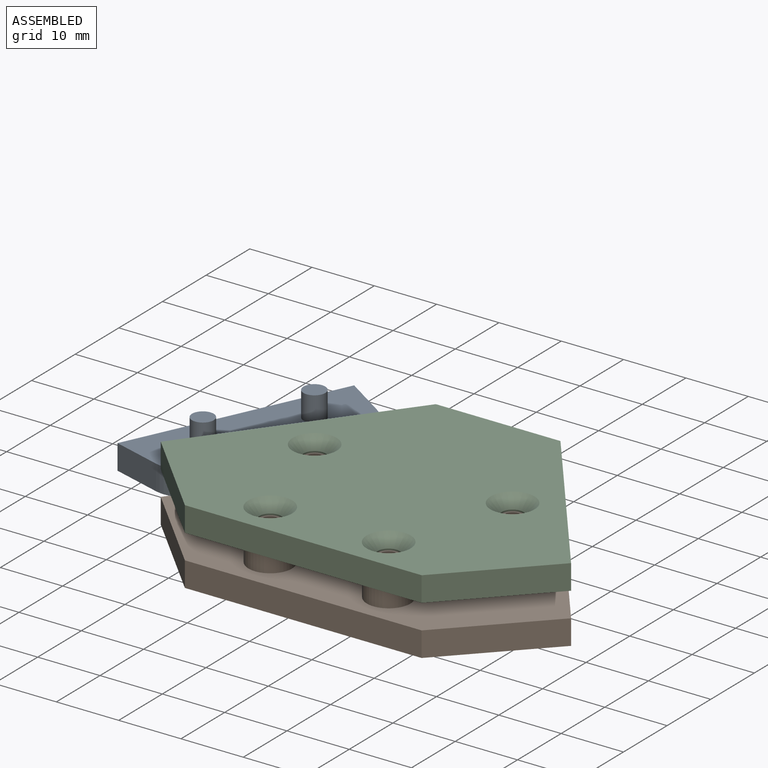
[diagram: assembled view]
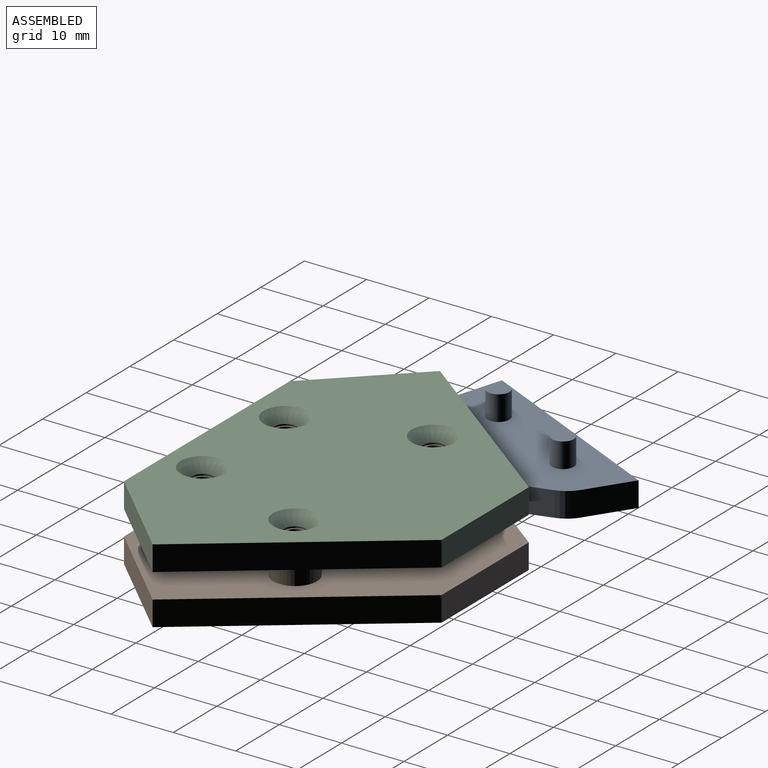
[diagram: assembled view, second angle]
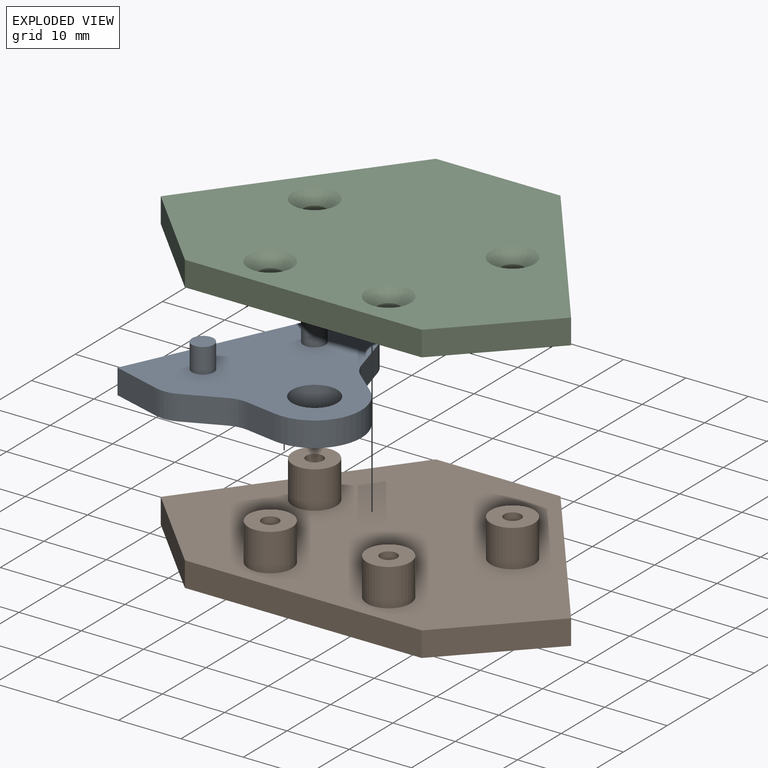
[diagram: exploded view]
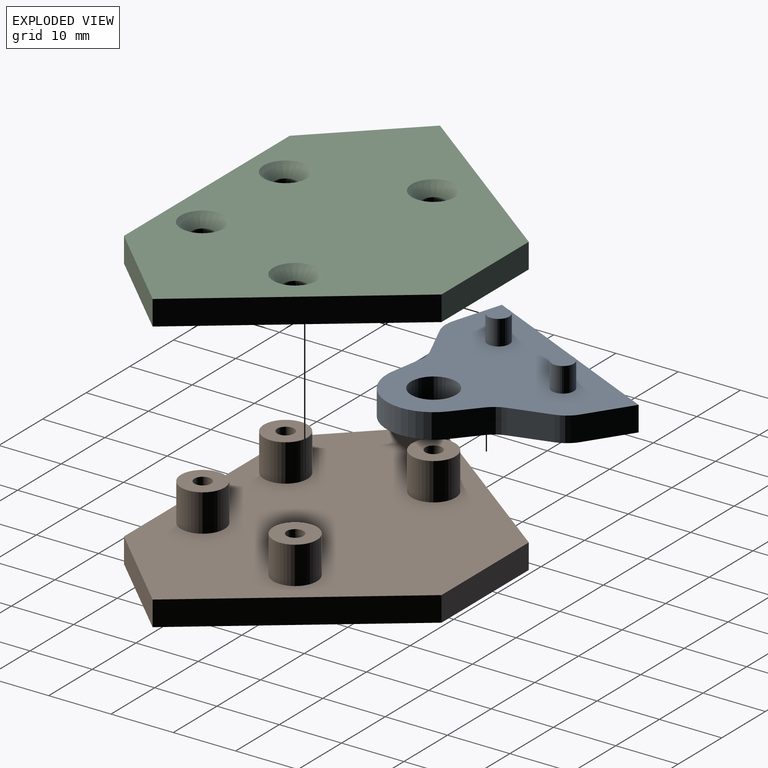
[diagram: exploded view, second angle]
ASSEMBLY  parts=3 mates=2
PART A: 19 faces, bbox 35.9x28.2x8 mm
  f0: plane 5.02x4.37mm, normal (0.66,0.75,0), area 26.6mm2, adj f1,f11,f13,f14
  f1: cylinder r=5mm len=4mm, axis (0,0,-1), area 11.7mm2, adj f0,f2,f13,f14
  f2: plane 4.82x4mm, normal (0.96,0.27,0), area 20mm2, adj f1,f3,f13,f14
  f3: cylinder r=7.5mm len=14.46mm, axis (0,0,-1), area 78mm2, adj f2,f4,f13,f14
  f4: plane 4.82x4mm, normal (-0.96,0.27,0), area 20mm2, adj f3,f5,f13,f14
  f5: cylinder r=5mm len=4mm, axis (0,0,-1), area 11.7mm2, adj f4,f6,f13,f14
  f6: plane 5.02x4.37mm, normal (-0.66,0.75,0), area 26.6mm2, adj f5,f7,f13,f14
  f7: cylinder r=5mm len=4mm, axis (0,0,-1), area 14.1mm2, adj f6,f8,f13,f14
  f8: plane 8.07x4mm, normal (-0.99,0.15,0), area 32.6mm2, adj f7,f9,f13,f14
  f9: plane 35.93x4mm, normal (0,-1,0), area 143.7mm2, adj f8,f10,f13,f14
  f10: plane 8.07x4mm, normal (0.99,0.15,0), area 32.6mm2, adj f9,f11,f13,f14
  f11: cylinder r=5mm len=4mm, axis (0,0,-1), area 14.1mm2, adj f0,f10,f13,f14
  f12: cylinder r=3.62mm len=7.25mm, axis (0,0,-1), area 91.1mm2, adj f13,f14
  f13: plane 35.93x28.23mm, normal (0,0,1), area 607.5mm2, adj f0,f1,f2,f3,f4,f5,f6,f7
  f14: plane 35.93x28.23mm, normal (0,0,-1), area 626.8mm2, adj f0,f1,f2,f3,f4,f5,f6,f7
  f15: cylinder r=1.75mm len=4mm, axis (0,0,-1), area 44mm2, adj f13,f16
  f16: plane 3.5x3.5mm, normal (0,0,1), area 9.6mm2, adj f15
  f17: cylinder r=1.75mm len=4mm, axis (0,0,-1), area 44mm2, adj f13,f18
  f18: plane 3.5x3.5mm, normal (0,0,1), area 9.6mm2, adj f17
PART B: 24 faces, bbox 65.9x44.7x10 mm
  f0: plane 20x4mm, normal (0,1,0), area 80mm2, adj f1,f5,f6,f7
  f1: plane 30.31x22.93mm, normal (-0.8,0.6,0), area 152mm2, adj f0,f2,f6,f7
  f2: plane 14.36x13.93mm, normal (-0.72,-0.7,0), area 80mm2, adj f1,f3,f6,f7
  f3: plane 38x4mm, normal (0,-1,0), area 152mm2, adj f2,f4,f6,f7
  f4: plane 14.36x13.93mm, normal (0.72,-0.7,0), area 80mm2, adj f3,f5,f6,f7
  f5: plane 30.31x22.93mm, normal (0.8,0.6,0), area 152mm2, adj f0,f4,f6,f7
  f6: plane 65.85x44.66mm, normal (0,0,1), area 1892.4mm2, adj f0,f1,f2,f3,f4,f5,f8,f11
  f7: plane 65.85x44.66mm, normal (0,0,-1), area 2046.3mm2, adj f0,f1,f2,f3,f4,f5
  f8: cylinder r=3.5mm len=7mm, axis (0,0,-1), area 131.9mm2, adj f6,f10
  f9: cylinder r=1.35mm len=7mm, axis (0,0,-1), area 59.5mm2, adj f10,f20
  f10: plane 7x7mm, normal (0,0,1), area 32.7mm2, adj f8,f9
  f11: cylinder r=3.5mm len=7mm, axis (0,0,-1), area 131.9mm2, adj f6,f13
  f12: cylinder r=1.35mm len=7mm, axis (0,0,-1), area 59.5mm2, adj f13,f21
  f13: plane 7x7mm, normal (0,0,1), area 32.7mm2, adj f11,f12
  f14: cylinder r=3.5mm len=7mm, axis (0,0,-1), area 131.9mm2, adj f6,f16
  f15: cylinder r=1.35mm len=7mm, axis (0,0,-1), area 59.5mm2, adj f16,f22
  f16: plane 7x7mm, normal (0,0,1), area 32.7mm2, adj f14,f15
  f17: cylinder r=3.5mm len=7mm, axis (0,0,-1), area 131.9mm2, adj f6,f19
  f18: cylinder r=1.35mm len=7mm, axis (0,0,-1), area 59.5mm2, adj f19,f23
  f19: plane 7x7mm, normal (0,0,1), area 32.7mm2, adj f17,f18
  f20: plane 2.71x2.71mm, normal (0,0,1), area 5.7mm2, adj f9
  f21: plane 2.71x2.71mm, normal (0,0,1), area 5.7mm2, adj f12
  f22: plane 2.71x2.71mm, normal (0,0,1), area 5.7mm2, adj f15
  f23: plane 2.71x2.71mm, normal (0,0,1), area 5.7mm2, adj f18
PART C: 24 faces, bbox 65.9x44.7x4 mm
  f0: plane 65.85x44.66mm, normal (0,0,-1), area 1892.4mm2, adj f1,f2,f3,f4,f5,f6,f16,f18
  f1: plane 20x4mm, normal (0,1,0), area 80mm2, adj f0,f2,f6,f7
  f2: plane 30.31x22.93mm, normal (-0.8,0.6,0), area 152mm2, adj f0,f1,f3,f7
  f3: plane 14.36x13.93mm, normal (-0.72,-0.7,0), area 80mm2, adj f0,f2,f4,f7
  f4: plane 38x4mm, normal (0,-1,0), area 152mm2, adj f0,f3,f5,f7
  f5: plane 14.36x13.93mm, normal (0.72,-0.7,0), area 80mm2, adj f0,f4,f6,f7
  f6: plane 30.31x22.93mm, normal (0.8,0.6,0), area 152mm2, adj f0,f1,f5,f7
  f7: plane 65.85x44.66mm, normal (0,0,1), area 1889.7mm2, adj f1,f2,f3,f4,f5,f6,f12,f13
  f8: cylinder r=1.75mm len=3.5mm, axis (0,0,-1), area 2.4mm2, adj f13,f23
  f9: cylinder r=1.75mm len=3.5mm, axis (0,0,-1), area 2.4mm2, adj f12,f21
  f10: cylinder r=1.75mm len=3.5mm, axis (0,0,-1), area 2.4mm2, adj f14,f19
  f11: cylinder r=1.75mm len=3.5mm, axis (0,0,-1), area 2.4mm2, adj f15,f17
  f12: cone r=3.53mm half-angle=45deg, axis (0,0,1), area 41.8mm2, adj f7,f9
  f13: cone r=1.75mm half-angle=45deg, axis (0,0,1), area 41.8mm2, adj f7,f8
  f14: cone r=1.75mm half-angle=45deg, axis (0,0,1), area 41.8mm2, adj f7,f10
  f15: cone r=3.53mm half-angle=45deg, axis (0,0,1), area 41.8mm2, adj f7,f11
  f16: cylinder r=3.5mm len=7mm, axis (0,0,-1), area 44mm2, adj f0,f17
  f17: plane 7x7mm, normal (0,0,-1), area 28.9mm2, adj f11,f16
  f18: cylinder r=3.5mm len=7mm, axis (0,0,-1), area 44mm2, adj f0,f19
  f19: plane 7x7mm, normal (0,0,-1), area 28.9mm2, adj f10,f18
  f20: cylinder r=3.5mm len=7mm, axis (0,0,-1), area 44mm2, adj f0,f21
  f21: plane 7x7mm, normal (0,0,-1), area 28.9mm2, adj f9,f20
  f22: cylinder r=3.5mm len=7mm, axis (0,0,-1), area 44mm2, adj f0,f23
  f23: plane 7x7mm, normal (0,0,-1), area 28.9mm2, adj f8,f22
PLACE A rot(axis=(0,0,-1),115deg) t=(-20.9,19.42,-3.44)mm
PLACE B t=(14.2,-13.68,-7.44)mm
PLACE C t=(14.2,-13.68,0.56)mm
MATE revolute A.f3 <-> B.f14  axis (0,0,-1) through (-1.68,11.6,-3.44)mm
MATE fastened C.f10 <-> B.f14  axis (0,0,-1) through (-1.68,11.6,2.56)mm
